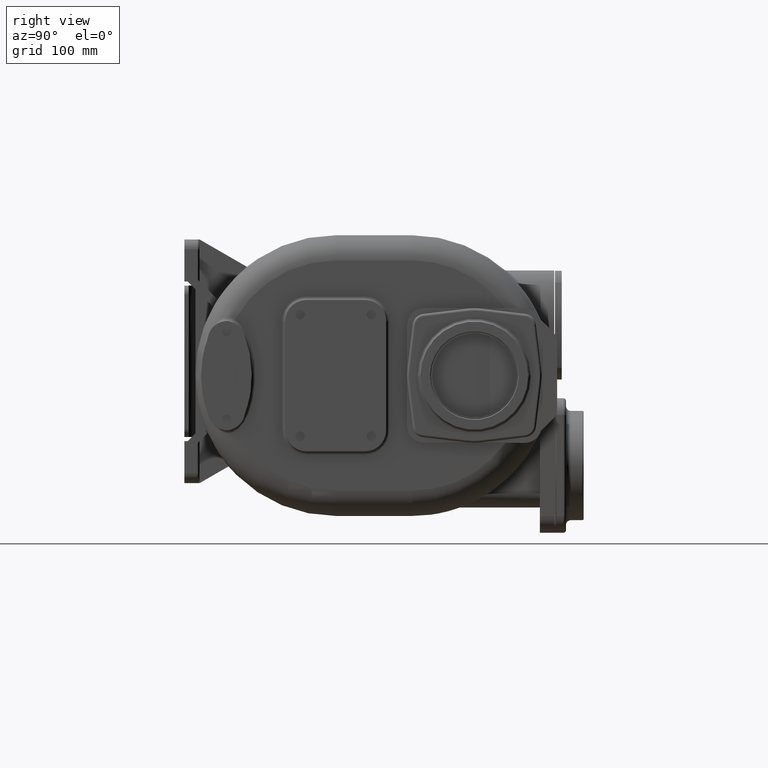
[diagram: clean part render]
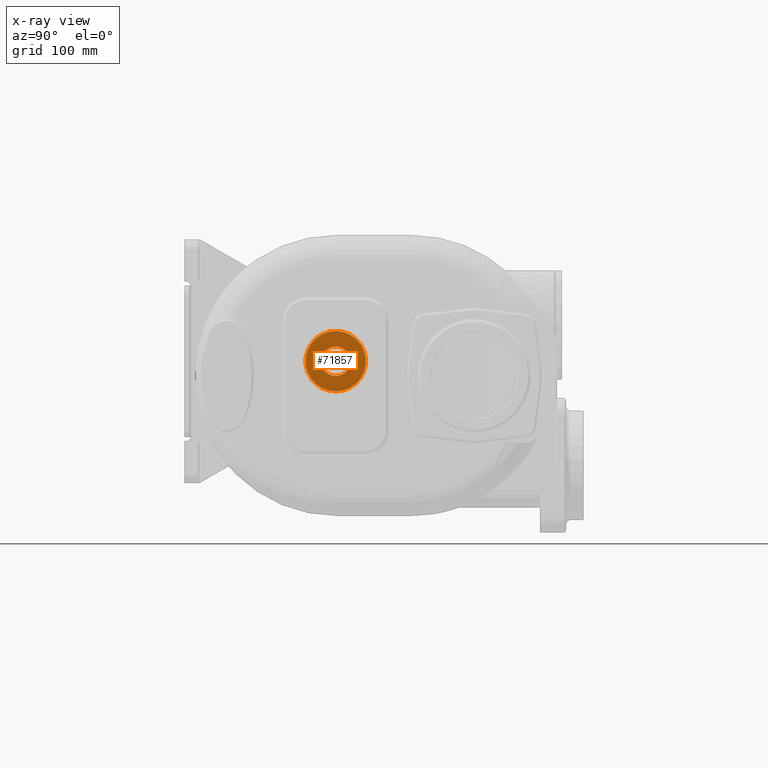
[diagram: x-ray — body ghosted, one internal face saturated and labeled with its STEP entity id]
A machine part, right view, then the same camera in x-ray: the body is ghosted and one INTERNAL B-rep face — a face not visible from any outside direction — is saturated and labeled: STEP entity #71857.
In plain terms, the highlighted planar face has unit normal (-1, 0, 0).
Its self-contained STEP definition (entity closure, byte-faithful):
#27313=CARTESIAN_POINT('',(-3.705E2,1.8E2,0.E0));
#27314=DIRECTION('',(-1.E0,0.E0,0.E0));
#27315=DIRECTION('',(0.E0,0.E0,-1.E0));
#27316=AXIS2_PLACEMENT_3D('',#27313,#27314,#27315);
#27318=CARTESIAN_POINT('',(-3.705E2,1.8E2,0.E0));
#27319=DIRECTION('',(-1.E0,0.E0,0.E0));
#27320=DIRECTION('',(0.E0,0.E0,1.E0));
#27321=AXIS2_PLACEMENT_3D('',#27318,#27319,#27320);
#27323=CARTESIAN_POINT('',(-3.705E2,1.8E2,0.E0));
#27324=DIRECTION('',(1.E0,0.E0,0.E0));
#27325=DIRECTION('',(0.E0,0.E0,-1.E0));
#27326=AXIS2_PLACEMENT_3D('',#27323,#27324,#27325);
#27328=CARTESIAN_POINT('',(-3.705E2,1.8E2,0.E0));
#27329=DIRECTION('',(1.E0,0.E0,0.E0));
#27330=DIRECTION('',(0.E0,0.E0,1.E0));
#27331=AXIS2_PLACEMENT_3D('',#27328,#27329,#27330);
#31088=CARTESIAN_POINT('',(-3.705E2,1.8E2,-1.75E1));
#31089=CARTESIAN_POINT('',(-3.705E2,1.8E2,1.75E1));
#31090=VERTEX_POINT('',#31088);
#31091=VERTEX_POINT('',#31089);
#31144=CARTESIAN_POINT('',(-3.705E2,1.8E2,-3.6E1));
#31145=CARTESIAN_POINT('',(-3.705E2,1.8E2,3.6E1));
#31146=VERTEX_POINT('',#31144);
#31147=VERTEX_POINT('',#31145);
#71841=CARTESIAN_POINT('',(-3.705E2,1.8E2,0.E0));
#71842=DIRECTION('',(-1.E0,0.E0,0.E0));
#71843=DIRECTION('',(0.E0,-1.E0,0.E0));
#71844=AXIS2_PLACEMENT_3D('',#71841,#71842,#71843);
#71845=PLANE('',#71844);
#71846=ORIENTED_EDGE('',*,*,#71831,.F.);
#71848=ORIENTED_EDGE('',*,*,#71847,.F.);
#71849=EDGE_LOOP('',(#71846,#71848));
#71850=FACE_OUTER_BOUND('',#71849,.F.);
#71852=ORIENTED_EDGE('',*,*,#71851,.F.);
#71854=ORIENTED_EDGE('',*,*,#71853,.F.);
#71855=EDGE_LOOP('',(#71852,#71854));
#71856=FACE_BOUND('',#71855,.F.);
#71857=ADVANCED_FACE('',(#71850,#71856),#71845,.T.);
#27317=CIRCLE('',#27316,3.6E1);
#27322=CIRCLE('',#27321,3.6E1);
#27327=CIRCLE('',#27326,1.75E1);
#27332=CIRCLE('',#27331,1.75E1);
#71831=EDGE_CURVE('',#31146,#31147,#27317,.T.);
#71847=EDGE_CURVE('',#31147,#31146,#27322,.T.);
#71851=EDGE_CURVE('',#31090,#31091,#27327,.T.);
#71853=EDGE_CURVE('',#31091,#31090,#27332,.T.);